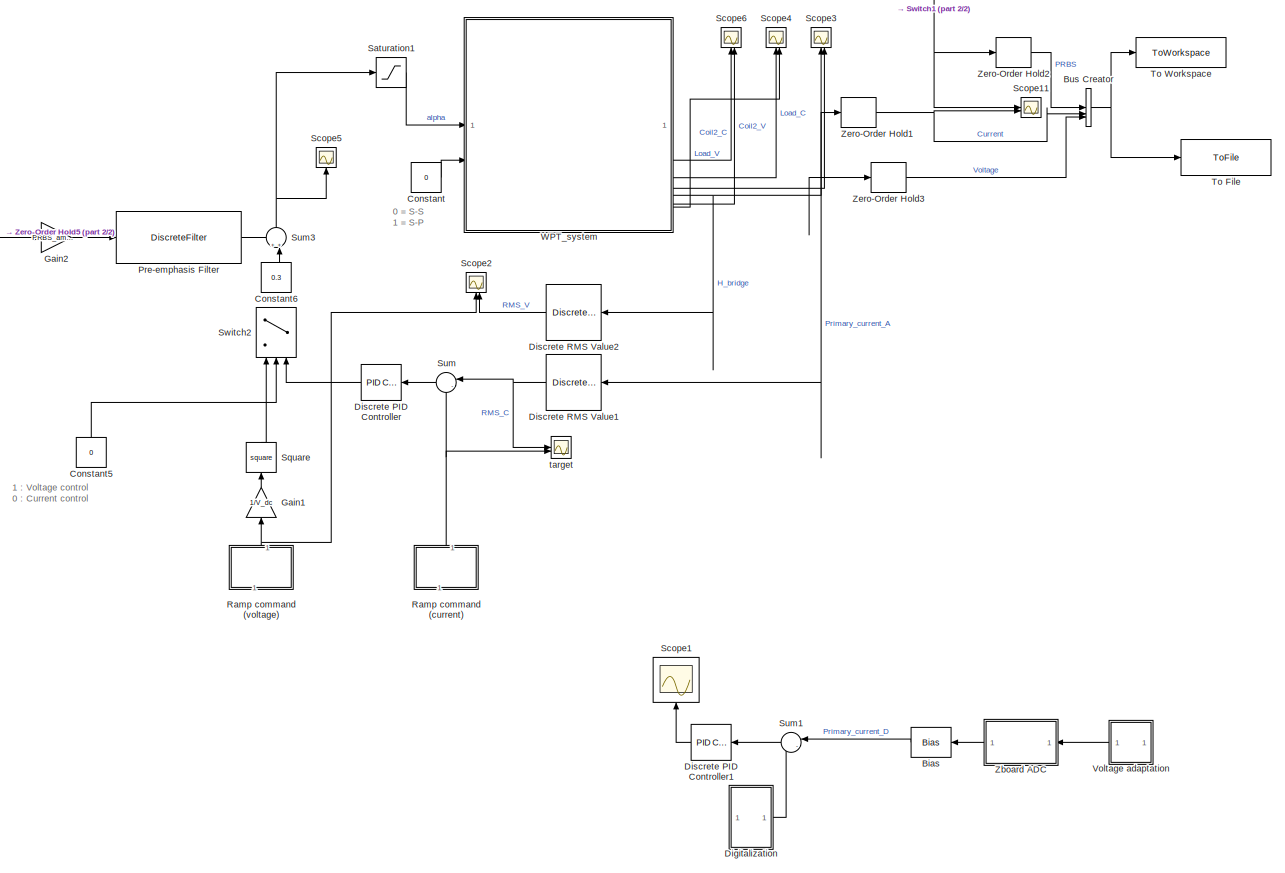
[diagram: root canvas - part 1/2, right side, full height]
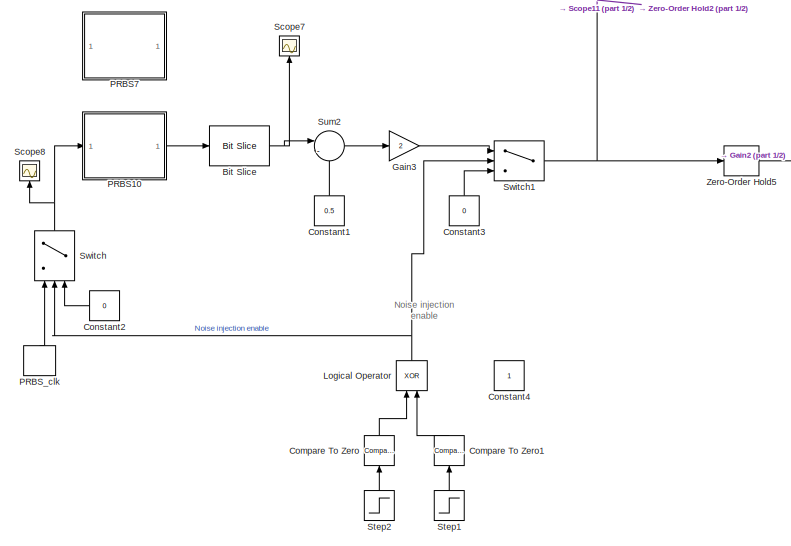
[diagram: root canvas - part 2/2, middle left region]
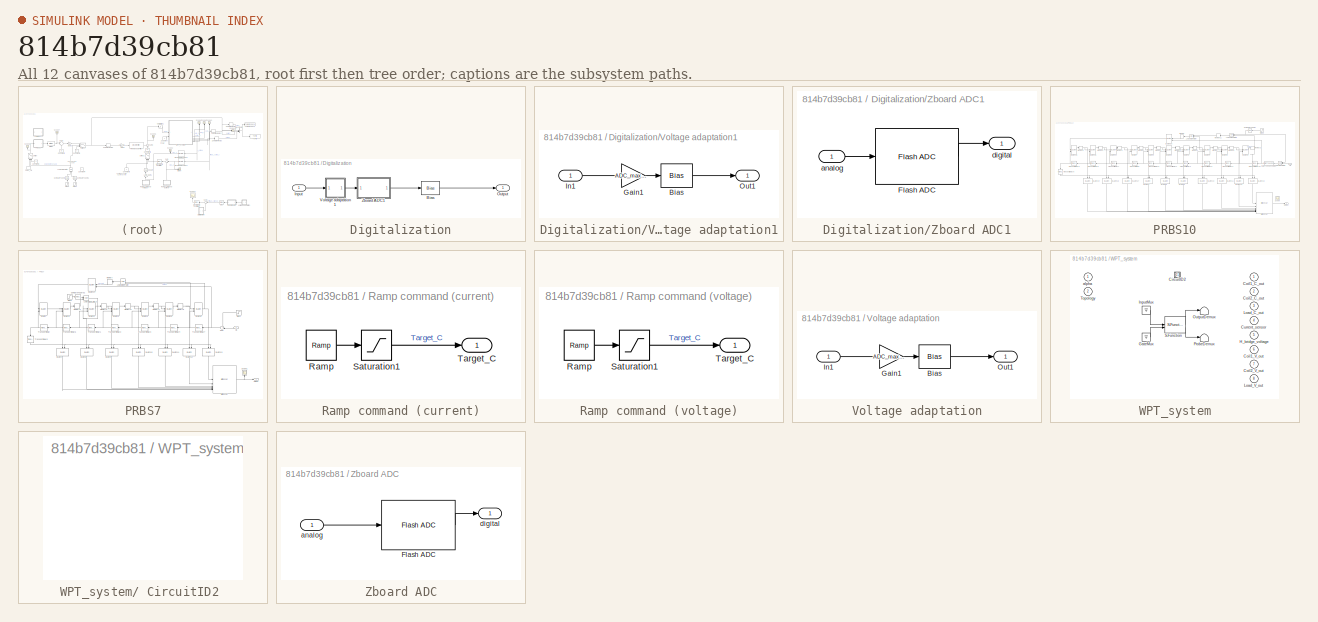
[diagram: thumbnail index - all 12 canvases of the model, root first then tree order]
MODEL slx_814b7d39cb81
KIND model
CONFIG AbsTol = auto
CONFIG EnableMultiTasking = on
CONFIG FixedStep = auto
CONFIG InitFcn = % Global param\nf0 = 85000;\nV_dc = 630;\nMax_c = 5;\nrise_time = 3e-3;\n\n% Zed board ADC param\nADC_max_amp = 40;\nADC_max_vol = 1.25;\nADC_f_sample = 1e6;\nADC_bits = 12;\n\n% Primary param\nL1 = 280.5e-6;\nC1 = 12.5e-9;%1/((2*pi*f0)^2*L1);\nR1 = 0.6;\n\n\n% Secondary param\nM = 14.3e-6;\nL2 = 120e-6;\nC2 =  29.2e-9; %1/((2*pi*f0)^2*L2);\n\nR2 = 0.4;\nR_l = 3.65;\nC_out = 10e-6;\nL_out = 1e-6;\n\n% PRBS param\nPRBS_n_bit =...<+535ch>
CONFIG MaxStep = auto
CONFIG MinStep = auto
CONFIG RelTol = 1e-3
CONFIG SampleTimeConstraint = Unconstrained
CONFIG SolverName = VariableStepAuto
CONFIG StartTime = 0.0
CONFIG StopTime = 0.0025
WORKSPACE source: mxarray member
WORKSPACE C1: Simulink.Parameter (value not decoded)
WORKSPACE C2: Simulink.Parameter (value not decoded)
WORKSPACE C_out: Simulink.Parameter (value not decoded)
WORKSPACE L1: Simulink.Parameter (value not decoded)
WORKSPACE L2: Simulink.Parameter (value not decoded)
WORKSPACE M: Simulink.Parameter (value not decoded)
WORKSPACE R1: Simulink.Parameter (value not decoded)
WORKSPACE R2: Simulink.Parameter (value not decoded)
WORKSPACE R_l: Simulink.Parameter (value not decoded)
WORKSPACE V_dc: Simulink.Parameter (value not decoded)
WORKSPACE f0: Simulink.Parameter (value not decoded)
WORKSPACE mwTaskManagerKernelLatency = 0
BLOCK [Bias] Bias
  Bias = - 2^11
  Commented = on
  NameLocation = top
  SaturateOnIntegerOverflow = off
BLOCK [Reference] Bit Slice  REF=hdlsllib/Logic and Bit
Operations/Bit Slice
  SourceBlock = hdlsllib/Logic and Bit\nOperations/Bit Slice
  SourceType = Bit Slice
BLOCK [BusCreator] Bus Creator
  DisplayOption = bar
  InheritFromInputs = on
  Inputs = 3
BLOCK [Reference] Compare To Zero  REF=simulink/Logic and Bit
Operations/Compare
To Zero
  NameLocation = right
  SourceBlock = simulink/Logic and Bit\nOperations/Compare\nTo Zero
  SourceType = Compare To Zero
BLOCK [Reference] Compare To Zero1  REF=simulink/Logic and Bit
Operations/Compare
To Zero
  NameLocation = right
  SourceBlock = simulink/Logic and Bit\nOperations/Compare\nTo Zero
  SourceType = Compare To Zero
BLOCK [Constant] Constant
  Value = 0
BLOCK [Constant] Constant1
  NameLocation = right
  Value = 0.5
BLOCK [Constant] Constant2
  NameLocation = top
  Value = 0
BLOCK [Constant] Constant3
  NameLocation = right
  Value = 0
BLOCK [Constant] Constant4
  NameLocation = right
BLOCK [Constant] Constant5
  NameLocation = right
  Value = 0
BLOCK [Constant] Constant6
  NameLocation = right
  Value = 0.3
BLOCK [SubSystem] Digitalization
  Commented = on
BLOCK [Bias] Digitalization/Bias
  Bias = - 2^11
  SaturateOnIntegerOverflow = off
BLOCK [Inport] Digitalization/Input
BLOCK [Outport] Digitalization/Output
BLOCK [SubSystem] Digitalization/Voltage adaptation1
BLOCK [Bias] Digitalization/Voltage adaptation1/Bias
  Bias = ADC_max_vol/2
  SaturateOnIntegerOverflow = off
BLOCK [Gain] Digitalization/Voltage adaptation1/Gain1
  Gain = ADC_max_vol/ADC_max_amp
BLOCK [Inport] Digitalization/Voltage adaptation1/In1
BLOCK [Outport] Digitalization/Voltage adaptation1/Out1
  NameLocation = top
BLOCK [SubSystem] Digitalization/Zboard ADC1
BLOCK [Reference] Digitalization/Zboard ADC1/Flash ADC  REF=msbAdcArchitectures/Flash ADC
  SourceBlock = msbAdcArchitectures/Flash ADC
  SourceType = FlashADC
BLOCK [Inport] Digitalization/Zboard ADC1/analog
BLOCK [Outport] Digitalization/Zboard ADC1/digital
  NameLocation = top
BLOCK [Reference] Discrete PID Controller  REF=slpidlib/PID Controller
  LibrarySourceBlock = hdlsllib/Discrete/Discrete PID Controller
  NameLocation = top
  SourceBlock = slpidlib/PID Controller
  SourceType = PID 1dof
BLOCK [Reference] Discrete PID Controller1  REF=slpidlib/PID Controller
  Commented = on
  LibrarySourceBlock = hdlsllib/Discrete/Discrete PID Controller
  NameLocation = top
  SourceBlock = slpidlib/PID Controller
  SourceType = PID 1dof
BLOCK [Reference] Discrete RMS Value1  REF=plecslib_extras2/Discrete Analysis/Discrete
RMS Value
  NameLocation = top
  SourceBlock = plecslib_extras2/Discrete Analysis/Discrete\nRMS Value
  SourceProductName = PLECS Extras
  SourceType = Discrete RMS Value
BLOCK [Reference] Discrete RMS Value2  REF=plecslib_extras2/Discrete Analysis/Discrete
RMS Value
  NameLocation = top
  SourceBlock = plecslib_extras2/Discrete Analysis/Discrete\nRMS Value
  SourceProductName = PLECS Extras
  SourceType = Discrete RMS Value
BLOCK [Gain] Gain1
  Gain = 1/V_dc
  NameLocation = right
BLOCK [Gain] Gain2
  Gain = PRBS_amplitude
BLOCK [Gain] Gain3
  Gain = 2
BLOCK [Logic] Logical Operator
  AllPortsSameDT = off
  NameLocation = right
  Operator = XOR
  OutDataTypeStr = boolean
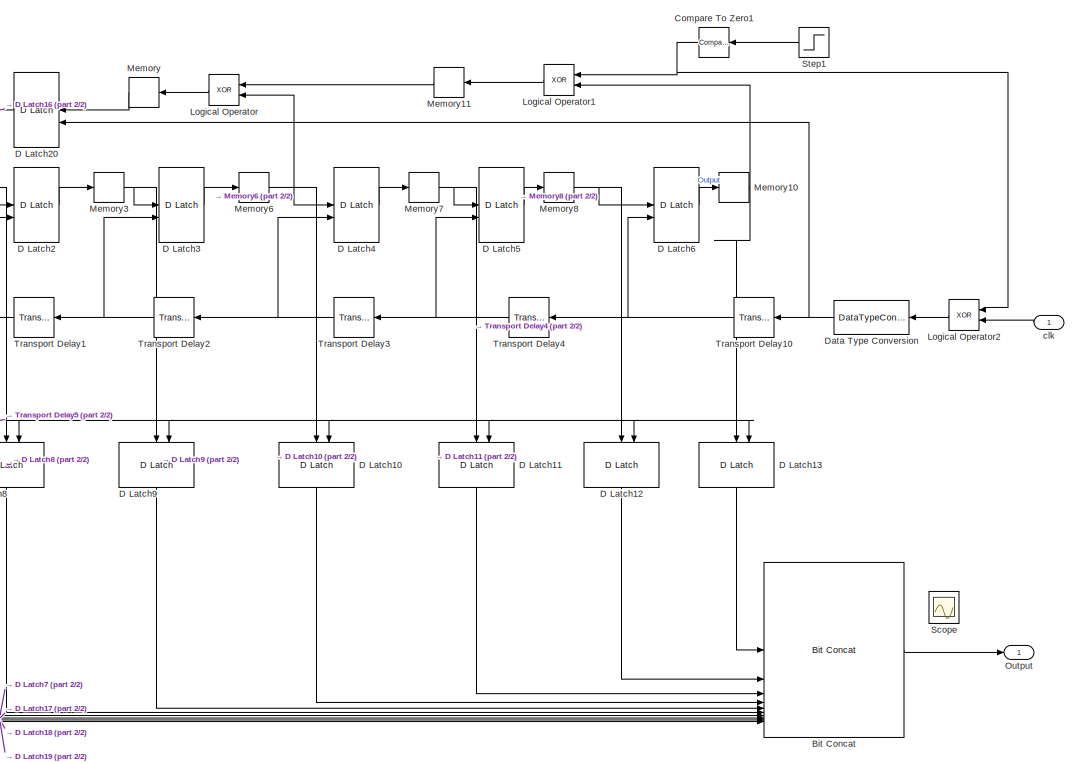
[diagram: PRBS10 - part 1/2, right side, full height]
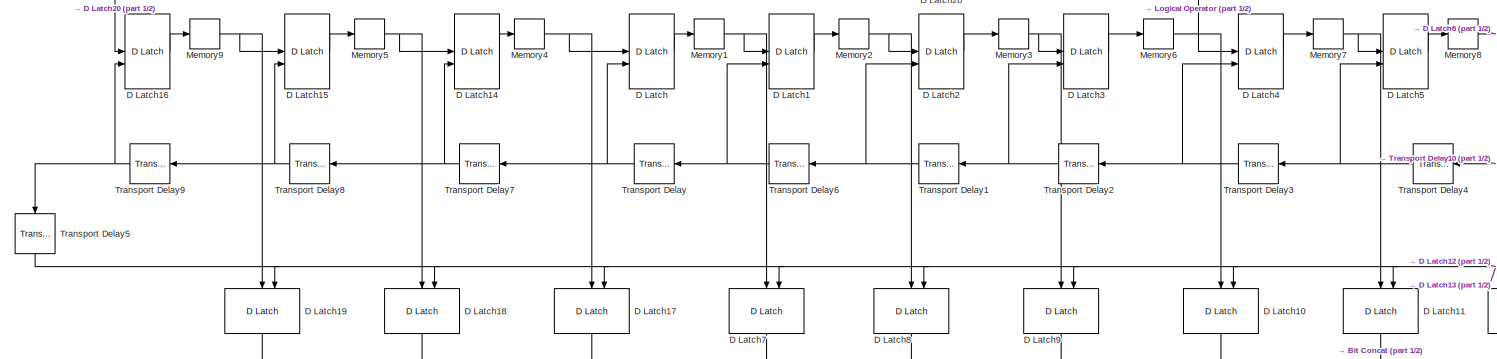
[diagram: PRBS10 - part 2/2, full width, middle band]
BLOCK [SubSystem] PRBS10
BLOCK [Reference] PRBS10/Bit Concat  REF=hdlsllib/Logic and Bit
Operations/Bit Concat
  SourceBlock = hdlsllib/Logic and Bit\nOperations/Bit Concat
  SourceType = Bit Concat
BLOCK [Reference] PRBS10/Compare To Zero1  REF=simulink/Logic and Bit
Operations/Compare
To Zero
  NameLocation = top
  SourceBlock = simulink/Logic and Bit\nOperations/Compare\nTo Zero
  SourceType = Compare To Zero
BLOCK [Reference] PRBS10/D Latch  REF=simulink_extras/Flip Flops/D Latch
  SourceBlock = simulink_extras/Flip Flops/D Latch
  SourceType = DLatch
BLOCK [Reference] PRBS10/D Latch1  REF=simulink_extras/Flip Flops/D Latch
  SourceBlock = simulink_extras/Flip Flops/D Latch
  SourceType = DLatch
BLOCK [Reference] PRBS10/D Latch10  REF=simulink_extras/Flip Flops/D Latch
  NameLocation = left
  SourceBlock = simulink_extras/Flip Flops/D Latch
  SourceType = DLatch
BLOCK [Reference] PRBS10/D Latch11  REF=simulink_extras/Flip Flops/D Latch
  NameLocation = left
  SourceBlock = simulink_extras/Flip Flops/D Latch
  SourceType = DLatch
BLOCK [Reference] PRBS10/D Latch12  REF=simulink_extras/Flip Flops/D Latch
  NameLocation = left
  SourceBlock = simulink_extras/Flip Flops/D Latch
  SourceType = DLatch
BLOCK [Reference] PRBS10/D Latch13  REF=simulink_extras/Flip Flops/D Latch
  NameLocation = left
  SourceBlock = simulink_extras/Flip Flops/D Latch
  SourceType = DLatch
BLOCK [Reference] PRBS10/D Latch14  REF=simulink_extras/Flip Flops/D Latch
  SourceBlock = simulink_extras/Flip Flops/D Latch
  SourceType = DLatch
BLOCK [Reference] PRBS10/D Latch15  REF=simulink_extras/Flip Flops/D Latch
  SourceBlock = simulink_extras/Flip Flops/D Latch
  SourceType = DLatch
BLOCK [Reference] PRBS10/D Latch16  REF=simulink_extras/Flip Flops/D Latch
  SourceBlock = simulink_extras/Flip Flops/D Latch
  SourceType = DLatch
BLOCK [Reference] PRBS10/D Latch17  REF=simulink_extras/Flip Flops/D Latch
  NameLocation = left
  SourceBlock = simulink_extras/Flip Flops/D Latch
  SourceType = DLatch
BLOCK [Reference] PRBS10/D Latch18  REF=simulink_extras/Flip Flops/D Latch
  NameLocation = left
  SourceBlock = simulink_extras/Flip Flops/D Latch
  SourceType = DLatch
BLOCK [Reference] PRBS10/D Latch19  REF=simulink_extras/Flip Flops/D Latch
  NameLocation = left
  SourceBlock = simulink_extras/Flip Flops/D Latch
  SourceType = DLatch
BLOCK [Reference] PRBS10/D Latch2  REF=simulink_extras/Flip Flops/D Latch
  SourceBlock = simulink_extras/Flip Flops/D Latch
  SourceType = DLatch
BLOCK [Reference] PRBS10/D Latch20  REF=simulink_extras/Flip Flops/D Latch
  NameLocation = top
  SourceBlock = simulink_extras/Flip Flops/D Latch
  SourceType = DLatch
BLOCK [Reference] PRBS10/D Latch3  REF=simulink_extras/Flip Flops/D Latch
  SourceBlock = simulink_extras/Flip Flops/D Latch
  SourceType = DLatch
BLOCK [Reference] PRBS10/D Latch4  REF=simulink_extras/Flip Flops/D Latch
  SourceBlock = simulink_extras/Flip Flops/D Latch
  SourceType = DLatch
BLOCK [Reference] PRBS10/D Latch5  REF=simulink_extras/Flip Flops/D Latch
  SourceBlock = simulink_extras/Flip Flops/D Latch
  SourceType = DLatch
BLOCK [Reference] PRBS10/D Latch6  REF=simulink_extras/Flip Flops/D Latch
  SourceBlock = simulink_extras/Flip Flops/D Latch
  SourceType = DLatch
BLOCK [Reference] PRBS10/D Latch7  REF=simulink_extras/Flip Flops/D Latch
  NameLocation = left
  SourceBlock = simulink_extras/Flip Flops/D Latch
  SourceType = DLatch
BLOCK [Reference] PRBS10/D Latch8  REF=simulink_extras/Flip Flops/D Latch
  NameLocation = left
  SourceBlock = simulink_extras/Flip Flops/D Latch
  SourceType = DLatch
BLOCK [Reference] PRBS10/D Latch9  REF=simulink_extras/Flip Flops/D Latch
  NameLocation = left
  SourceBlock = simulink_extras/Flip Flops/D Latch
  SourceType = DLatch
BLOCK [DataTypeConversion] PRBS10/Data Type Conversion
  NameLocation = top
  OutDataTypeStr = double
  RndMeth = Floor
  SaturateOnIntegerOverflow = off
BLOCK [Logic] PRBS10/Logical Operator
  AllPortsSameDT = off
  NameLocation = top
  Operator = XOR
  OutDataTypeStr = boolean
BLOCK [Logic] PRBS10/Logical Operator1
  AllPortsSameDT = off
  NameLocation = top
  Operator = XOR
  OutDataTypeStr = boolean
BLOCK [Logic] PRBS10/Logical Operator2
  AllPortsSameDT = off
  NameLocation = top
  Operator = XOR
BLOCK [Memory] PRBS10/Memory
  NameLocation = top
BLOCK [Memory] PRBS10/Memory1
BLOCK [Memory] PRBS10/Memory10
BLOCK [Memory] PRBS10/Memory11
  NameLocation = top
BLOCK [Memory] PRBS10/Memory2
BLOCK [Memory] PRBS10/Memory3
BLOCK [Memory] PRBS10/Memory4
BLOCK [Memory] PRBS10/Memory5
BLOCK [Memory] PRBS10/Memory6
BLOCK [Memory] PRBS10/Memory7
BLOCK [Memory] PRBS10/Memory8
BLOCK [Memory] PRBS10/Memory9
BLOCK [Outport] PRBS10/Output
BLOCK [Scope] PRBS10/Scope
  Floating = off
  NumInputPorts = 1
  ScopeSpecificationString = Simulink.scopes.TimeScopeBlockCfg('CurrentConfiguration', extmgr.ConfigurationSet(extmgr.Configuration('Core','General UI',true),extmgr.Configuration('Core','Source UI',true),extmgr.Configuration('Sources','WiredSimulink',true,'DataLoggingVariableName','ScopeData2'),extmgr.Configuration('Visuals','Time Domain',true),extmgr.Configuration('Tools','Plot Navigation',true),extmgr.Configuration('Tools',...<+40ch>
BLOCK [Step] PRBS10/Step1
  NameLocation = top
  SampleTime = 0
  Time = 1* PRBS_delay
BLOCK [TransportDelay] PRBS10/Transport Delay
  BufferSize = 16384
  DelayTime = PRBS_delay
  NameLocation = top
BLOCK [TransportDelay] PRBS10/Transport Delay1
  BufferSize = 16384
  DelayTime = PRBS_delay
  NameLocation = top
BLOCK [TransportDelay] PRBS10/Transport Delay10
  BufferSize = 16384
  DelayTime = PRBS_delay
  NameLocation = top
BLOCK [TransportDelay] PRBS10/Transport Delay2
  BufferSize = 16384
  DelayTime = PRBS_delay
  NameLocation = top
BLOCK [TransportDelay] PRBS10/Transport Delay3
  BufferSize = 16384
  DelayTime = PRBS_delay
  NameLocation = top
BLOCK [TransportDelay] PRBS10/Transport Delay4
  BufferSize = 16384
  DelayTime = PRBS_delay
  NameLocation = top
BLOCK [TransportDelay] PRBS10/Transport Delay5
  BufferSize = 16384
  DelayTime = PRBS_delay
  InitialOutput = 1
  NameLocation = left
BLOCK [TransportDelay] PRBS10/Transport Delay6
  BufferSize = 16384
  DelayTime = PRBS_delay
  NameLocation = top
BLOCK [TransportDelay] PRBS10/Transport Delay7
  BufferSize = 16384
  DelayTime = PRBS_delay
  NameLocation = top
BLOCK [TransportDelay] PRBS10/Transport Delay8
  BufferSize = 16384
  DelayTime = PRBS_delay
  NameLocation = top
BLOCK [TransportDelay] PRBS10/Transport Delay9
  BufferSize = 16384
  DelayTime = PRBS_delay
  NameLocation = top
BLOCK [Inport] PRBS10/clk
  NameLocation = top
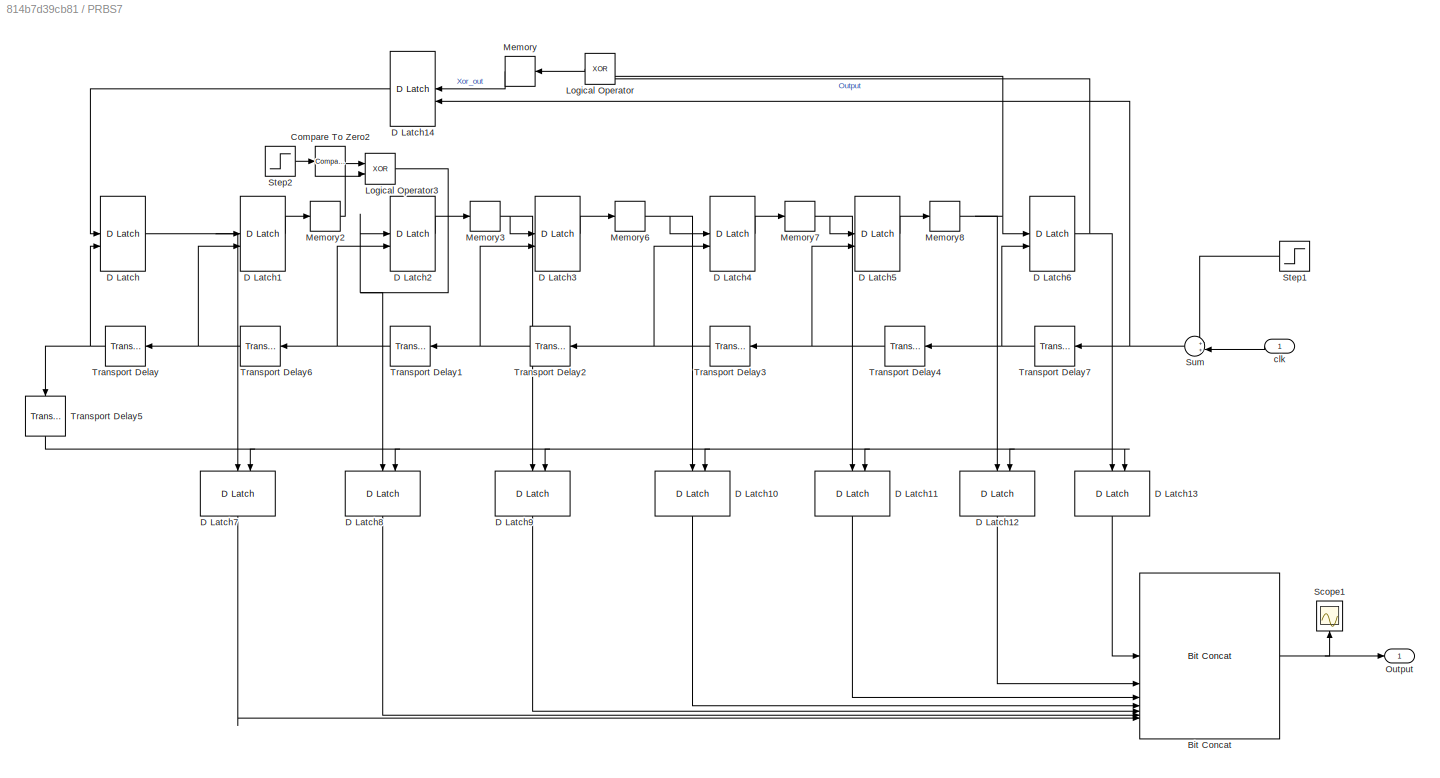
BLOCK [SubSystem] PRBS7
  Commented = on
BLOCK [Reference] PRBS7/Bit Concat  REF=hdlsllib/Logic and Bit
Operations/Bit Concat
  SourceBlock = hdlsllib/Logic and Bit\nOperations/Bit Concat
  SourceType = Bit Concat
BLOCK [Reference] PRBS7/Compare To Zero2  REF=simulink/Logic and Bit
Operations/Compare
To Zero
  SourceBlock = simulink/Logic and Bit\nOperations/Compare\nTo Zero
  SourceType = Compare To Zero
BLOCK [Reference] PRBS7/D Latch  REF=simulink_extras/Flip Flops/D Latch
  SourceBlock = simulink_extras/Flip Flops/D Latch
  SourceType = DLatch
BLOCK [Reference] PRBS7/D Latch1  REF=simulink_extras/Flip Flops/D Latch
  SourceBlock = simulink_extras/Flip Flops/D Latch
  SourceType = DLatch
BLOCK [Reference] PRBS7/D Latch10  REF=simulink_extras/Flip Flops/D Latch
  NameLocation = left
  SourceBlock = simulink_extras/Flip Flops/D Latch
  SourceType = DLatch
BLOCK [Reference] PRBS7/D Latch11  REF=simulink_extras/Flip Flops/D Latch
  NameLocation = left
  SourceBlock = simulink_extras/Flip Flops/D Latch
  SourceType = DLatch
BLOCK [Reference] PRBS7/D Latch12  REF=simulink_extras/Flip Flops/D Latch
  NameLocation = left
  SourceBlock = simulink_extras/Flip Flops/D Latch
  SourceType = DLatch
BLOCK [Reference] PRBS7/D Latch13  REF=simulink_extras/Flip Flops/D Latch
  NameLocation = left
  SourceBlock = simulink_extras/Flip Flops/D Latch
  SourceType = DLatch
BLOCK [Reference] PRBS7/D Latch14  REF=simulink_extras/Flip Flops/D Latch
  NameLocation = top
  SourceBlock = simulink_extras/Flip Flops/D Latch
  SourceType = DLatch
BLOCK [Reference] PRBS7/D Latch2  REF=simulink_extras/Flip Flops/D Latch
  SourceBlock = simulink_extras/Flip Flops/D Latch
  SourceType = DLatch
BLOCK [Reference] PRBS7/D Latch3  REF=simulink_extras/Flip Flops/D Latch
  SourceBlock = simulink_extras/Flip Flops/D Latch
  SourceType = DLatch
BLOCK [Reference] PRBS7/D Latch4  REF=simulink_extras/Flip Flops/D Latch
  SourceBlock = simulink_extras/Flip Flops/D Latch
  SourceType = DLatch
BLOCK [Reference] PRBS7/D Latch5  REF=simulink_extras/Flip Flops/D Latch
  SourceBlock = simulink_extras/Flip Flops/D Latch
  SourceType = DLatch
BLOCK [Reference] PRBS7/D Latch6  REF=simulink_extras/Flip Flops/D Latch
  SourceBlock = simulink_extras/Flip Flops/D Latch
  SourceType = DLatch
BLOCK [Reference] PRBS7/D Latch7  REF=simulink_extras/Flip Flops/D Latch
  NameLocation = left
  SourceBlock = simulink_extras/Flip Flops/D Latch
  SourceType = DLatch
BLOCK [Reference] PRBS7/D Latch8  REF=simulink_extras/Flip Flops/D Latch
  NameLocation = left
  SourceBlock = simulink_extras/Flip Flops/D Latch
  SourceType = DLatch
BLOCK [Reference] PRBS7/D Latch9  REF=simulink_extras/Flip Flops/D Latch
  NameLocation = left
  SourceBlock = simulink_extras/Flip Flops/D Latch
  SourceType = DLatch
BLOCK [Logic] PRBS7/Logical Operator
  AllPortsSameDT = off
  NameLocation = top
  Operator = XOR
  OutDataTypeStr = boolean
BLOCK [Logic] PRBS7/Logical Operator3
  AllPortsSameDT = off
  Operator = XOR
  OutDataTypeStr = boolean
BLOCK [Memory] PRBS7/Memory
  NameLocation = top
BLOCK [Memory] PRBS7/Memory2
BLOCK [Memory] PRBS7/Memory3
BLOCK [Memory] PRBS7/Memory6
BLOCK [Memory] PRBS7/Memory7
BLOCK [Memory] PRBS7/Memory8
BLOCK [Outport] PRBS7/Output
BLOCK [Scope] PRBS7/Scope1
  Floating = off
  NameLocation = right
  NumInputPorts = 1
  ScopeSpecificationString = Simulink.scopes.TimeScopeBlockCfg('CurrentConfiguration', extmgr.ConfigurationSet(extmgr.Configuration('Core','General UI',true),extmgr.Configuration('Core','Source UI',true),extmgr.Configuration('Sources','WiredSimulink',true,'DataLoggingVariableName','ScopeData1'),extmgr.Configuration('Visuals','Time Domain',true,'SerializedDisplays',{struct('MinYLimReal','-14.75','MaxYLimReal','142.75','YLabelR...<+1500ch>
BLOCK [Step] PRBS7/Step1
  After = 0
  Before = 1
  NameLocation = top
  SampleTime = 0
  Time = 5/(100*PRBS_f)
BLOCK [Step] PRBS7/Step2
  SampleTime = 0
  Time = 9* PRBS_delay
BLOCK [Sum] PRBS7/Sum
  Inputs = ++|
  NameLocation = top
BLOCK [TransportDelay] PRBS7/Transport Delay
  BufferSize = 16384
  DelayTime = PRBS_delay
  NameLocation = top
BLOCK [TransportDelay] PRBS7/Transport Delay1
  BufferSize = 16384
  DelayTime = PRBS_delay
  NameLocation = top
BLOCK [TransportDelay] PRBS7/Transport Delay2
  BufferSize = 16384
  DelayTime = PRBS_delay
  NameLocation = top
BLOCK [TransportDelay] PRBS7/Transport Delay3
  BufferSize = 16384
  DelayTime = PRBS_delay
  NameLocation = top
BLOCK [TransportDelay] PRBS7/Transport Delay4
  BufferSize = 16384
  DelayTime = PRBS_delay
  NameLocation = top
BLOCK [TransportDelay] PRBS7/Transport Delay5
  BufferSize = 16384
  DelayTime = PRBS_delay
  InitialOutput = 1
  NameLocation = left
BLOCK [TransportDelay] PRBS7/Transport Delay6
  BufferSize = 16384
  DelayTime = PRBS_delay
  NameLocation = top
BLOCK [TransportDelay] PRBS7/Transport Delay7
  BufferSize = 16384
  DelayTime = PRBS_delay
  NameLocation = top
BLOCK [Inport] PRBS7/clk
  NameLocation = top
BLOCK [DiscretePulseGenerator] PRBS_clk 
  Period = 1/PRBS_f
  PulseType = Time based
  PulseWidth = PRBS_up
BLOCK [DiscreteFilter] Pre-emphasis Filter
  Denominator = [1]
  InputPortMap = u0
  Numerator = [1 -Filter_param_1]
BLOCK [SubSystem] Ramp command (current)
BLOCK [Reference] Ramp command (current)/Ramp  REF=simulink/Sources/Ramp
  SourceBlock = simulink/Sources/Ramp
  SourceType = Ramp
BLOCK [Saturate] Ramp command (current)/Saturation1
  LowerLimit = 0
  UpperLimit = Max_c
BLOCK [Outport] Ramp command (current)/Target_C
BLOCK [SubSystem] Ramp command (voltage)
BLOCK [Reference] Ramp command (voltage)/Ramp  REF=simulink/Sources/Ramp
  SourceBlock = simulink/Sources/Ramp
  SourceType = Ramp
BLOCK [Saturate] Ramp command (voltage)/Saturation1
  LowerLimit = 0
  UpperLimit = V_dc/2
BLOCK [Outport] Ramp command (voltage)/Target_C
BLOCK [Saturate] Saturation1
  LowerLimit = 0
  UpperLimit = 1
BLOCK [Scope] Scope1
  Commented = on
  Floating = off
  NameLocation = right
  NumInputPorts = 1
  ScopeSpecificationString = Simulink.scopes.TimeScopeBlockCfg('CurrentConfiguration', extmgr.ConfigurationSet(extmgr.Configuration('Core','General UI',true),extmgr.Configuration('Core','Source UI',true),extmgr.Configuration('Sources','WiredSimulink',true,'DataLoggingVariableName','ScopeData1'),extmgr.Configuration('Visuals','Time Domain',true,'SerializedDisplays',{struct('MinYLimReal','-9264.07835','MaxYLimReal','80931.25341...<+1478ch>
BLOCK [Scope] Scope11
  Floating = off
  NumInputPorts = 2
  ScopeSpecificationString = Simulink.scopes.TimeScopeBlockCfg('CurrentConfiguration', extmgr.ConfigurationSet(extmgr.Configuration('Core','General UI',true,'FigureColor',[1 1 1]),extmgr.Configuration('Core','Source UI',true),extmgr.Configuration('Sources','WiredSimulink',true,'DataLoggingVariableName','ScopeData1'),extmgr.Configuration('Visuals','Time Domain',true,'SerializedDisplays',{struct('MinYLimReal','-45.17196','MaxYL...<+1681ch>
BLOCK [Scope] Scope2
  Floating = off
  NameLocation = right
  NumInputPorts = 2
  ScopeSpecificationString = Simulink.scopes.TimeScopeBlockCfg('CurrentConfiguration', extmgr.ConfigurationSet(extmgr.Configuration('Core','General UI',true,'FigureColor',[1 1 1]),extmgr.Configuration('Core','Source UI',true),extmgr.Configuration('Sources','WiredSimulink',true,'DataLoggingVariableName','ScopeData1'),extmgr.Configuration('Visuals','Time Domain',true,'SerializedDisplays',{struct('MinYLimReal','-5.68441','MaxYLi...<+1664ch>
BLOCK [Scope] Scope3
  Floating = off
  NameLocation = right
  NumInputPorts = 2
  ScopeSpecificationString = Simulink.scopes.TimeScopeBlockCfg('CurrentConfiguration', extmgr.ConfigurationSet(extmgr.Configuration('Core','General UI',true,'FigureColor',[1 1 1]),extmgr.Configuration('Core','Source UI',true),extmgr.Configuration('Sources','WiredSimulink',true,'DataLoggingVariableName','ScopeData1'),extmgr.Configuration('Visuals','Time Domain',true,'SerializedDisplays',{struct('MinYLimReal','-45.18277','MaxYL...<+1691ch>
BLOCK [Scope] Scope4
  Floating = off
  NameLocation = right
  NumInputPorts = 2
  ScopeSpecificationString = Simulink.scopes.TimeScopeBlockCfg('CurrentConfiguration', extmgr.ConfigurationSet(extmgr.Configuration('Core','General UI',true,'FigureColor',[1 1 1]),extmgr.Configuration('Core','Source UI',true),extmgr.Configuration('Sources','WiredSimulink',true,'DataLoggingVariableName','ScopeData1'),extmgr.Configuration('Visuals','Time Domain',true,'SerializedDisplays',{struct('MinYLimReal','-49.18413','MaxYL...<+1681ch>
BLOCK [Scope] Scope5
  Floating = off
  NameLocation = right
  NumInputPorts = 1
  ScopeSpecificationString = Simulink.scopes.TimeScopeBlockCfg('CurrentConfiguration', extmgr.ConfigurationSet(extmgr.Configuration('Core','General UI',true,'FigureColor',[1 1 1]),extmgr.Configuration('Core','Source UI',true),extmgr.Configuration('Sources','WiredSimulink',true,'DataLoggingVariableName','ScopeData1'),extmgr.Configuration('Visuals','Time Domain',true,'SerializedDisplays',{struct('MinYLimReal','0.2','MaxYLimReal...<+1936ch>
BLOCK [Scope] Scope6
  Floating = off
  NameLocation = right
  NumInputPorts = 2
  ScopeSpecificationString = Simulink.scopes.TimeScopeBlockCfg('CurrentConfiguration', extmgr.ConfigurationSet(extmgr.Configuration('Core','General UI',true,'FigureColor',[1 1 1]),extmgr.Configuration('Core','Source UI',true),extmgr.Configuration('Sources','WiredSimulink',true,'DataLoggingVariableName','ScopeData2'),extmgr.Configuration('Visuals','Time Domain',true,'SerializedDisplays',{struct('MinYLimReal','-6.90827','MaxYLi...<+1652ch>
BLOCK [Scope] Scope7
  Floating = off
  NameLocation = right
  NumInputPorts = 1
  ScopeSpecificationString = Simulink.scopes.TimeScopeBlockCfg('CurrentConfiguration', extmgr.ConfigurationSet(extmgr.Configuration('Core','General UI',true,'FigureColor',[1 1 1]),extmgr.Configuration('Core','Source UI',true),extmgr.Configuration('Sources','WiredSimulink',true,'DataLoggingVariableName','ScopeData1'),extmgr.Configuration('Visuals','Time Domain',true,'SerializedDisplays',{struct('MinYLimReal','-1.00000','MaxYLi...<+1671ch>
BLOCK [Scope] Scope8
  Floating = off
  NameLocation = right
  NumInputPorts = 1
  ScopeSpecificationString = Simulink.scopes.TimeScopeBlockCfg('CurrentConfiguration', extmgr.ConfigurationSet(extmgr.Configuration('Core','General UI',true,'FigureColor',[1 1 1]),extmgr.Configuration('Core','Source UI',true),extmgr.Configuration('Sources','WiredSimulink',true,'DataLoggingVariableName','ScopeData3'),extmgr.Configuration('Visuals','Time Domain',true,'SerializedDisplays',{struct('MinYLimReal','-0.03901','MaxYLi...<+1666ch>
BLOCK [Math] Square
  NameLocation = right
  Operator = square
  RndMeth = Zero
  SignedPower = on
BLOCK [Step] Step1
  After = 0
  Before = 1
  NameLocation = right
  SampleTime = 0
  Time = PRBS_t_start
BLOCK [Step] Step2
  After = 0
  Before = 1
  NameLocation = right
  SampleTime = 0
  Time = PRBS_t_stop
BLOCK [Sum] Sum
  Inputs = |-+
  NameLocation = top
BLOCK [Sum] Sum1
  Commented = on
  Inputs = |-+
  NameLocation = top
BLOCK [Sum] Sum2
  AccumDataTypeStr = double
  Inputs = |-+
BLOCK [Sum] Sum3
  Inputs = ++|
  NameLocation = right
BLOCK [Switch] Switch
  Criteria = u2 > Threshold
  InputSameDT = off
  NameLocation = right
  SaturateOnIntegerOverflow = off
BLOCK [Switch] Switch1
  Criteria = u2 > Threshold
  InputSameDT = off
  SaturateOnIntegerOverflow = off
BLOCK [Switch] Switch2
  Criteria = u2 > Threshold
  InputSameDT = off
  NameLocation = left
  SaturateOnIntegerOverflow = off
BLOCK [ToFile] To File
  Filename = sim_values_row_PRBS7_start_up_values_with_voltage.mat
  MatrixName = values
  SampleTime = 1e-6
BLOCK [ToWorkspace] To Workspace
  FixptAsFi = on
  MaxDataPoints = inf
  SampleTime = 1e-6
  VariableName = simout
BLOCK [SubSystem] Voltage adaptation
  Commented = on
  NameLocation = top
BLOCK [Bias] Voltage adaptation/Bias
  Bias = ADC_max_vol/2
  SaturateOnIntegerOverflow = off
BLOCK [Gain] Voltage adaptation/Gain1
  Gain = ADC_max_vol/ADC_max_amp
BLOCK [Inport] Voltage adaptation/In1
BLOCK [Outport] Voltage adaptation/Out1
  NameLocation = top
BLOCK [SubSystem] WPT_system
  CopyFcn = plecs('sl', 203);
  DeleteFcn = plecs('sl', 205);
  DestroyFcn = plecs('sl', 207);
  ErrorFcn = plerrorfcn
  InitFcn = plecs('sl', 214);
  LoadFcn = plecs('sl', 200);
  NameChangeFcn = plecs('sl', 210);
  OpenFcn = plecs('sl', 202);
  PostSaveFcn = plecs('sl', 201);
  PreCopyFcn = plecs('sl', 216);
  PreSaveFcn = plecs('sl', 211);
  ShowPortLabels = FromPortBlockName
  StartFcn = plecs('sl', 208);
  StopFcn = plecs('sl', 209);
  UndoDeleteFcn = plecs('sl', 206);
BLOCK [SubSystem] WPT_system/ CircuitID2 
BLOCK [Ground] WPT_system/ GateMux 
BLOCK [Ground] WPT_system/ InputMux 
BLOCK [Terminator] WPT_system/ OutputDemux 
BLOCK [Terminator] WPT_system/ ProbeDemux 
BLOCK [S-Function] WPT_system/ S-Function 
  EnableBusSupport = off
  FunctionName = plecs
  SFcnIsStateOwnerBlock = off
  SFunctionDeploymentMode = off
BLOCK [Outport] WPT_system/Coil1_C_out
  PortDimensions = 1
BLOCK [Outport] WPT_system/Coil1_V_out
  Port = 6
  PortDimensions = 1
BLOCK [Outport] WPT_system/Coil2_C_out
  Port = 2
  PortDimensions = 1
BLOCK [Outport] WPT_system/Coil2_V_out
  Port = 7
  PortDimensions = 1
BLOCK [Outport] WPT_system/Current_sensor
  Port = 4
  PortDimensions = 1
BLOCK [Outport] WPT_system/H_bridge_voltage
  Port = 5
  PortDimensions = 1
BLOCK [Outport] WPT_system/Load_C_out
  Port = 3
  PortDimensions = 1
BLOCK [Outport] WPT_system/Load_V_out
  Port = 8
  PortDimensions = 1
BLOCK [Inport] WPT_system/Topology
  Port = 2
  PortDimensions = 1
BLOCK [Inport] WPT_system/alpha
  PortDimensions = 1
BLOCK [SubSystem] Zboard ADC
  Commented = on
  NameLocation = top
BLOCK [Reference] Zboard ADC/Flash ADC  REF=msbAdcArchitectures/Flash ADC
  SourceBlock = msbAdcArchitectures/Flash ADC
  SourceType = FlashADC
BLOCK [Inport] Zboard ADC/analog
BLOCK [Outport] Zboard ADC/digital
  NameLocation = top
BLOCK [ZeroOrderHold] Zero-Order Hold1
  SampleTime = 1/ADC_f_sample
BLOCK [ZeroOrderHold] Zero-Order Hold2
  SampleTime = 1e-6
BLOCK [ZeroOrderHold] Zero-Order Hold3
  SampleTime = 1/ADC_f_sample
BLOCK [ZeroOrderHold] Zero-Order Hold5
  SampleTime = 1/PRBS_f
BLOCK [Scope] target
  Floating = off
  NumInputPorts = 2
  ScopeSpecificationString = Simulink.scopes.TimeScopeBlockCfg('CurrentConfiguration', extmgr.ConfigurationSet(extmgr.Configuration('Core','General UI',true,'FigureColor',[1 1 1]),extmgr.Configuration('Core','Source UI',true),extmgr.Configuration('Sources','WiredSimulink',true,'DataLoggingVariableName','ScopeData2'),extmgr.Configuration('Visuals','Time Domain',true,'SerializedDisplays',{struct('MinYLimReal','-0.7901','MaxYLim...<+1697ch>
ANNOTATION (root): 0 = S-S 1 = S-P
ANNOTATION (root): 1 : Voltage control 0 : Current control
ANNOTATION (root): Noise injection enable
LINE Bias:1 -> Sum1:1
NET Bit Slice:1 -> Scope7:1, Sum2:1
NET Bus Creator:1 -> To File:1, To Workspace:1
LINE Compare To Zero1:1 -> Logical Operator:2
LINE Compare To Zero:1 -> Logical Operator:1
LINE Constant1:1 -> Sum2:2
LINE Constant2:1 -> Switch:3
LINE Constant3:1 -> Switch1:3
LINE Constant5:1 -> Switch2:2
LINE Constant6:1 -> Sum3:2
LINE Constant:1 -> WPT_system:2
LINE Digitalization/Bias:1 -> Digitalization/Output:1
LINE Digitalization/Input:1 -> Digitalization/Voltage adaptation1:1
LINE Digitalization/Voltage adaptation1/Bias:1 -> Digitalization/Voltage adaptation1/Out1:1
LINE Digitalization/Voltage adaptation1/Gain1:1 -> Digitalization/Voltage adaptation1/Bias:1
LINE Digitalization/Voltage adaptation1/In1:1 -> Digitalization/Voltage adaptation1/Gain1:1
LINE Digitalization/Voltage adaptation1:1 -> Digitalization/Zboard ADC1:1
LINE Digitalization/Zboard ADC1/Flash ADC:1 -> Digitalization/Zboard ADC1/digital:1
LINE Digitalization/Zboard ADC1/analog:1 -> Digitalization/Zboard ADC1/Flash ADC:1
LINE Digitalization/Zboard ADC1:1 -> Digitalization/Bias:1
LINE Digitalization:1 -> Sum1:2
LINE Discrete PID Controller1:1 -> Scope1:1
LINE Discrete PID Controller:1 -> Switch2:3
NET Discrete RMS Value1:1 -> Sum:1, target:1
LINE Discrete RMS Value2:1 -> Scope2:2
LINE Gain1:1 -> Square:1
LINE Gain2:1 -> Pre-emphasis Filter:1
LINE Gain3:1 -> Switch1:1
NET Logical Operator:1 -> Switch1:2, Switch:2
LINE PRBS10/Bit Concat:1 -> PRBS10/Output:1
NET PRBS10/Compare To Zero1:1 -> PRBS10/Logical Operator1:1, PRBS10/Logical Operator2:1
LINE PRBS10/D Latch10:1 -> PRBS10/Bit Concat:4
LINE PRBS10/D Latch11:1 -> PRBS10/Bit Concat:3
LINE PRBS10/D Latch12:1 -> PRBS10/Bit Concat:2
LINE PRBS10/D Latch13:1 -> PRBS10/Bit Concat:1
LINE PRBS10/D Latch14:1 -> PRBS10/Memory4:1
LINE PRBS10/D Latch15:1 -> PRBS10/Memory5:1
LINE PRBS10/D Latch16:1 -> PRBS10/Memory9:1
LINE PRBS10/D Latch17:1 -> PRBS10/Bit Concat:8
LINE PRBS10/D Latch18:1 -> PRBS10/Bit Concat:9
LINE PRBS10/D Latch19:1 -> PRBS10/Bit Concat:10
LINE PRBS10/D Latch1:1 -> PRBS10/Memory2:1
LINE PRBS10/D Latch20:1 -> PRBS10/D Latch16:1
LINE PRBS10/D Latch2:1 -> PRBS10/Memory3:1
LINE PRBS10/D Latch3:1 -> PRBS10/Memory6:1
LINE PRBS10/D Latch4:1 -> PRBS10/Memory7:1
LINE PRBS10/D Latch5:1 -> PRBS10/Memory8:1
LINE PRBS10/D Latch6:1 -> PRBS10/Memory10:1
LINE PRBS10/D Latch7:1 -> PRBS10/Bit Concat:7
LINE PRBS10/D Latch8:1 -> PRBS10/Bit Concat:6
LINE PRBS10/D Latch9:1 -> PRBS10/Bit Concat:5
LINE PRBS10/D Latch:1 -> PRBS10/Memory1:1
NET PRBS10/Data Type Conversion:1 -> PRBS10/D Latch20:2, PRBS10/Transport Delay10:1
LINE PRBS10/Logical Operator1:1 -> PRBS10/Memory11:1
LINE PRBS10/Logical Operator2:1 -> PRBS10/Data Type Conversion:1
LINE PRBS10/Logical Operator:1 -> PRBS10/Memory:1
NET PRBS10/Memory10:1 -> PRBS10/D Latch13:1, PRBS10/Logical Operator1:2
LINE PRBS10/Memory11:1 -> PRBS10/Logical Operator:1
NET PRBS10/Memory1:1 -> PRBS10/D Latch1:1, PRBS10/D Latch7:1
NET PRBS10/Memory2:1 -> PRBS10/D Latch2:1, PRBS10/D Latch8:1
NET PRBS10/Memory3:1 -> PRBS10/D Latch3:1, PRBS10/D Latch9:1
NET PRBS10/Memory4:1 -> PRBS10/D Latch17:1, PRBS10/D Latch:1
NET PRBS10/Memory5:1 -> PRBS10/D Latch14:1, PRBS10/D Latch18:1
NET PRBS10/Memory6:1 -> PRBS10/D Latch10:1, PRBS10/D Latch4:1, PRBS10/Logical Operator:2
NET PRBS10/Memory7:1 -> PRBS10/D Latch11:1, PRBS10/D Latch5:1
NET PRBS10/Memory8:1 -> PRBS10/D Latch12:1, PRBS10/D Latch6:1
NET PRBS10/Memory9:1 -> PRBS10/D Latch15:1, PRBS10/D Latch19:1
LINE PRBS10/Memory:1 -> PRBS10/D Latch20:1
LINE PRBS10/Step1:1 -> PRBS10/Compare To Zero1:1
NET PRBS10/Transport Delay10:1 -> PRBS10/D Latch6:2, PRBS10/Transport Delay4:1
NET PRBS10/Transport Delay1:1 -> PRBS10/D Latch2:2, PRBS10/Transport Delay6:1
NET PRBS10/Transport Delay2:1 -> PRBS10/D Latch3:2, PRBS10/Transport Delay1:1
NET PRBS10/Transport Delay3:1 -> PRBS10/D Latch4:2, PRBS10/Transport Delay2:1
NET PRBS10/Transport Delay4:1 -> PRBS10/D Latch5:2, PRBS10/Transport Delay3:1
NET PRBS10/Transport Delay5:1 -> PRBS10/D Latch10:2, PRBS10/D Latch11:2, PRBS10/D Latch12:2, PRBS10/D Latch13:2, PRBS10/D Latch17:2, PRBS10/D Latch18:2, PRBS10/D Latch19:2, PRBS10/D Latch7:2, PRBS10/D Latch8:2, PRBS10/D Latch9:2
NET PRBS10/Transport Delay6:1 -> PRBS10/D Latch1:2, PRBS10/Transport Delay:1
NET PRBS10/Transport Delay7:1 -> PRBS10/D Latch14:2, PRBS10/Transport Delay8:1
NET PRBS10/Transport Delay8:1 -> PRBS10/D Latch15:2, PRBS10/Transport Delay9:1
NET PRBS10/Transport Delay9:1 -> PRBS10/D Latch16:2, PRBS10/Transport Delay5:1
NET PRBS10/Transport Delay:1 -> PRBS10/D Latch:2, PRBS10/Transport Delay7:1
LINE PRBS10/clk:1 -> PRBS10/Logical Operator2:2
LINE PRBS10:1 -> Bit Slice:1
NET PRBS7/Bit Concat:1 -> PRBS7/Output:1, PRBS7/Scope1:1
LINE PRBS7/Compare To Zero2:1 -> PRBS7/Logical Operator3:1
LINE PRBS7/D Latch10:1 -> PRBS7/Bit Concat:4
LINE PRBS7/D Latch11:1 -> PRBS7/Bit Concat:3
LINE PRBS7/D Latch12:1 -> PRBS7/Bit Concat:2
LINE PRBS7/D Latch13:1 -> PRBS7/Bit Concat:1
LINE PRBS7/D Latch14:1 -> PRBS7/D Latch:1
LINE PRBS7/D Latch1:1 -> PRBS7/Memory2:1
LINE PRBS7/D Latch2:1 -> PRBS7/Memory3:1
LINE PRBS7/D Latch3:1 -> PRBS7/Memory6:1
LINE PRBS7/D Latch4:1 -> PRBS7/Memory7:1
LINE PRBS7/D Latch5:1 -> PRBS7/Memory8:1
NET PRBS7/D Latch6:1 -> PRBS7/D Latch13:1, PRBS7/Logical Operator:1
LINE PRBS7/D Latch7:1 -> PRBS7/Bit Concat:7
LINE PRBS7/D Latch8:1 -> PRBS7/Bit Concat:6
LINE PRBS7/D Latch9:1 -> PRBS7/Bit Concat:5
NET PRBS7/D Latch:1 -> PRBS7/D Latch1:1, PRBS7/D Latch7:1
NET PRBS7/Logical Operator3:1 -> PRBS7/D Latch2:1, PRBS7/D Latch8:1
LINE PRBS7/Logical Operator:1 -> PRBS7/Memory:1
LINE PRBS7/Memory2:1 -> PRBS7/Logical Operator3:2
NET PRBS7/Memory3:1 -> PRBS7/D Latch3:1, PRBS7/D Latch9:1
NET PRBS7/Memory6:1 -> PRBS7/D Latch10:1, PRBS7/D Latch4:1
NET PRBS7/Memory7:1 -> PRBS7/D Latch11:1, PRBS7/D Latch5:1
NET PRBS7/Memory8:1 -> PRBS7/D Latch12:1, PRBS7/D Latch6:1, PRBS7/Logical Operator:2
LINE PRBS7/Memory:1 -> PRBS7/D Latch14:1
LINE PRBS7/Step1:1 -> PRBS7/Sum:1
LINE PRBS7/Step2:1 -> PRBS7/Compare To Zero2:1
NET PRBS7/Sum:1 -> PRBS7/D Latch14:2, PRBS7/Transport Delay7:1
NET PRBS7/Transport Delay1:1 -> PRBS7/D Latch2:2, PRBS7/Transport Delay6:1
NET PRBS7/Transport Delay2:1 -> PRBS7/D Latch3:2, PRBS7/Transport Delay1:1
NET PRBS7/Transport Delay3:1 -> PRBS7/D Latch4:2, PRBS7/Transport Delay2:1
NET PRBS7/Transport Delay4:1 -> PRBS7/D Latch5:2, PRBS7/Transport Delay3:1
NET PRBS7/Transport Delay5:1 -> PRBS7/D Latch10:2, PRBS7/D Latch11:2, PRBS7/D Latch12:2, PRBS7/D Latch13:2, PRBS7/D Latch7:2, PRBS7/D Latch8:2, PRBS7/D Latch9:2
NET PRBS7/Transport Delay6:1 -> PRBS7/D Latch1:2, PRBS7/Transport Delay:1
NET PRBS7/Transport Delay7:1 -> PRBS7/D Latch6:2, PRBS7/Transport Delay4:1
NET PRBS7/Transport Delay:1 -> PRBS7/D Latch:2, PRBS7/Transport Delay5:1
LINE PRBS7/clk:1 -> PRBS7/Sum:2
LINE PRBS_clk :1 -> Switch:1
LINE Pre-emphasis Filter:1 -> Sum3:1
LINE Ramp command (current)/Ramp:1 -> Ramp command (current)/Saturation1:1
LINE Ramp command (current)/Saturation1:1 -> Ramp command (current)/Target_C:1
NET Ramp command (current):1 -> Sum:2, target:2
LINE Ramp command (voltage)/Ramp:1 -> Ramp command (voltage)/Saturation1:1
LINE Ramp command (voltage)/Saturation1:1 -> Ramp command (voltage)/Target_C:1
NET Ramp command (voltage):1 -> Gain1:1, Scope2:1
LINE Saturation1:1 -> WPT_system:1
LINE Square:1 -> Switch2:1
LINE Step1:1 -> Compare To Zero1:1
LINE Step2:1 -> Compare To Zero:1
LINE Sum1:1 -> Discrete PID Controller1:1
LINE Sum2:1 -> Gain3:1
NET Sum3:1 -> Saturation1:1, Scope5:1
LINE Sum:1 -> Discrete PID Controller:1
NET Switch1:1 -> Scope11:1, Zero-Order Hold2:1, Zero-Order Hold5:1
NET Switch:1 -> PRBS10:1, Scope8:1
LINE Voltage adaptation/Bias:1 -> Voltage adaptation/Out1:1
LINE Voltage adaptation/Gain1:1 -> Voltage adaptation/Bias:1
LINE Voltage adaptation/In1:1 -> Voltage adaptation/Gain1:1
LINE Voltage adaptation:1 -> Zboard ADC:1
LINE WPT_system:2 -> Scope6:1
LINE WPT_system:3 -> Scope4:1
NET WPT_system:4 -> Discrete RMS Value1:1, Scope3:2, Zero-Order Hold1:1
NET WPT_system:5 -> Discrete RMS Value2:1, Scope3:1, Zero-Order Hold3:1
LINE WPT_system:7 -> Scope6:2
LINE WPT_system:8 -> Scope4:2
LINE Zboard ADC/Flash ADC:1 -> Zboard ADC/digital:1
LINE Zboard ADC/analog:1 -> Zboard ADC/Flash ADC:1
LINE Zboard ADC:1 -> Bias:1
NET Zero-Order Hold1:1 -> Bus Creator:2, Scope11:2
LINE Zero-Order Hold2:1 -> Bus Creator:1
LINE Zero-Order Hold3:1 -> Bus Creator:3
LINE Zero-Order Hold5:1 -> Gain2:1
note: NET lines group one-source signal fan-out (src -> all destinations, sorted); 1:1 wires keep LINE
